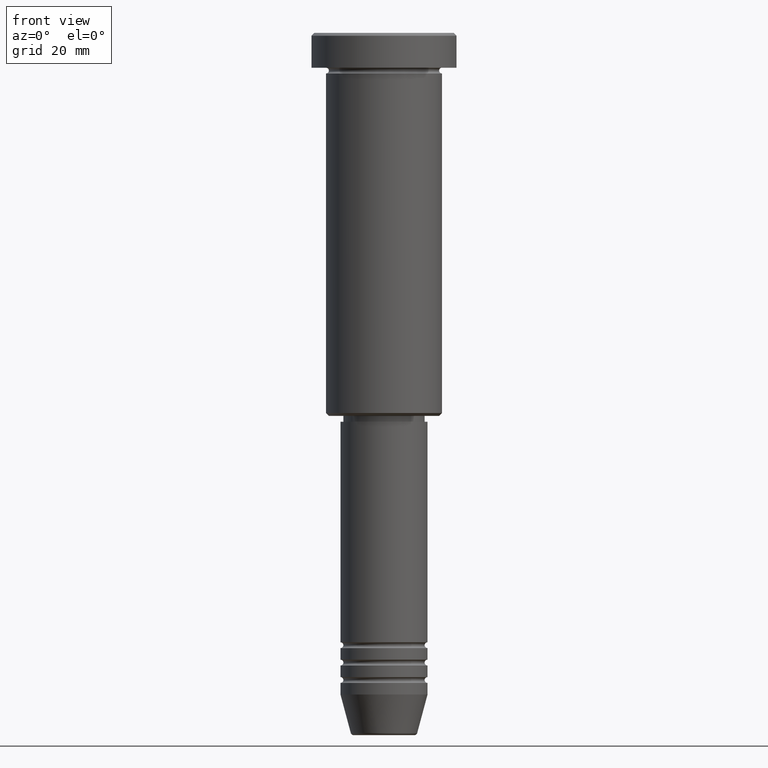
[diagram: clean part render]
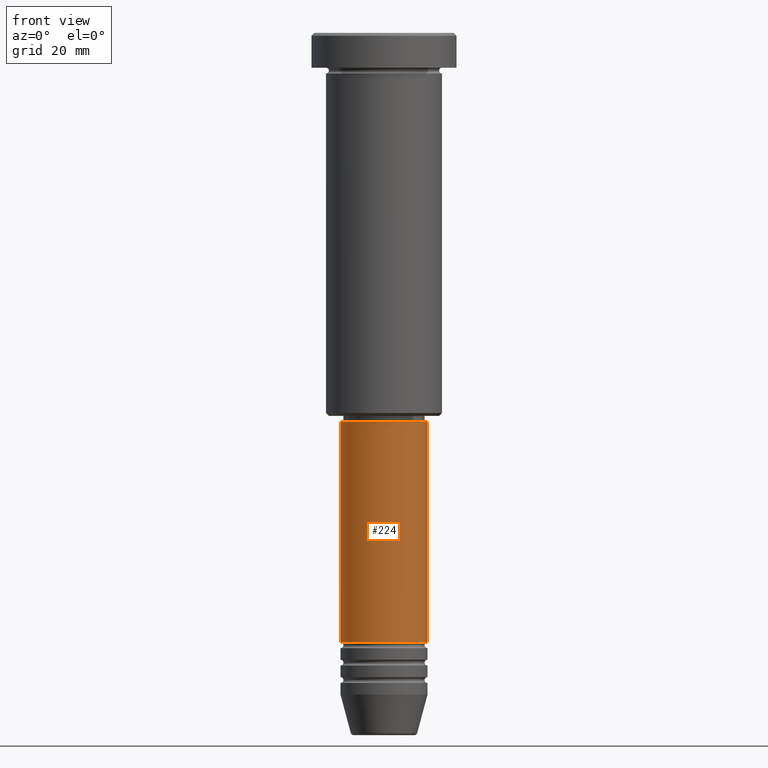
[diagram: same view with one face highlighted and labeled with its STEP entity id]
A machine part, front view. The second image highlights one B-rep face of the part: STEP entity #224.
In plain terms, the highlighted cylindrical surface (partial cylindrical patch) has radius 7.5 mm, axis along (-0, -0, 1).
Its self-contained STEP definition (entity closure, byte-faithful):
#41 = ORIENTED_EDGE ( 'NONE', *, *, #173, .F. ) ;
#80 = EDGE_CURVE ( 'NONE', #596, #1158, #393, .T. ) ;
#152 = CARTESIAN_POINT ( 'NONE',  ( -7.500000000000000000, 9.184850993605147944E-16, -67.00000000000000000 ) ) ;
#163 = DIRECTION ( 'NONE',  ( 1.000000000000000000, 0.000000000000000000, 0.000000000000000000 ) ) ;
#173 = EDGE_CURVE ( 'NONE', #357, #1158, #335, .T. ) ;
#181 = AXIS2_PLACEMENT_3D ( 'NONE', #436, #261, #248 ) ;
#194 = DIRECTION ( 'NONE',  ( 1.000000000000000000, 0.000000000000000000, 0.000000000000000000 ) ) ;
#224 = ADVANCED_FACE ( 'NONE', ( #1026 ), #489, .T. ) ;
#248 = DIRECTION ( 'NONE',  ( 1.000000000000000000, 0.000000000000000000, 0.000000000000000000 ) ) ;
#261 = DIRECTION ( 'NONE',  ( -0.000000000000000000, -0.000000000000000000, 1.000000000000000000 ) ) ;
#294 = DIRECTION ( 'NONE',  ( -0.000000000000000000, -0.000000000000000000, 1.000000000000000000 ) ) ;
#313 = VECTOR ( 'NONE', #1031, 1000.000000000000000 ) ;
#335 = CIRCLE ( 'NONE', #490, 7.500000000000000000 ) ;
#357 = VERTEX_POINT ( 'NONE', #152 ) ;
#393 = LINE ( 'NONE', #661, #313 ) ;
#436 = CARTESIAN_POINT ( 'NONE',  ( 0.000000000000000000, 0.000000000000000000, -104.9999999999999858 ) ) ;
#489 = CYLINDRICAL_SURFACE ( 'NONE', #602, 7.500000000000000000 ) ;
#490 = AXIS2_PLACEMENT_3D ( 'NONE', #1156, #693, #163 ) ;
#540 = EDGE_CURVE ( 'NONE', #859, #357, #683, .T. ) ;
#596 = VERTEX_POINT ( 'NONE', #676 ) ;
#602 = AXIS2_PLACEMENT_3D ( 'NONE', #949, #294, #194 ) ;
#661 = CARTESIAN_POINT ( 'NONE',  ( 7.500000000000000000, 0.000000000000000000, 0.000000000000000000 ) ) ;
#676 = CARTESIAN_POINT ( 'NONE',  ( 7.500000000000000000, 0.000000000000000000, -104.9999999999999858 ) ) ;
#683 = LINE ( 'NONE', #942, #716 ) ;
#693 = DIRECTION ( 'NONE',  ( -0.000000000000000000, -0.000000000000000000, 1.000000000000000000 ) ) ;
#716 = VECTOR ( 'NONE', #1132, 1000.000000000000000 ) ;
#748 = ORIENTED_EDGE ( 'NONE', *, *, #1141, .T. ) ;
#751 = CIRCLE ( 'NONE', #181, 7.500000000000000000 ) ;
#774 = EDGE_LOOP ( 'NONE', ( #1120, #748, #1033, #41 ) ) ;
#859 = VERTEX_POINT ( 'NONE', #930 ) ;
#930 = CARTESIAN_POINT ( 'NONE',  ( -7.500000000000000000, 9.184850993605147944E-16, -104.9999999999999858 ) ) ;
#942 = CARTESIAN_POINT ( 'NONE',  ( -7.500000000000000000, 9.184850993605147944E-16, 0.000000000000000000 ) ) ;
#949 = CARTESIAN_POINT ( 'NONE',  ( 0.000000000000000000, 0.000000000000000000, 0.000000000000000000 ) ) ;
#1026 = FACE_OUTER_BOUND ( 'NONE', #774, .T. ) ;
#1031 = DIRECTION ( 'NONE',  ( -0.000000000000000000, -0.000000000000000000, 1.000000000000000000 ) ) ;
#1033 = ORIENTED_EDGE ( 'NONE', *, *, #80, .T. ) ;
#1071 = CARTESIAN_POINT ( 'NONE',  ( 7.500000000000000000, 0.000000000000000000, -67.00000000000000000 ) ) ;
#1120 = ORIENTED_EDGE ( 'NONE', *, *, #540, .F. ) ;
#1132 = DIRECTION ( 'NONE',  ( -0.000000000000000000, -0.000000000000000000, 1.000000000000000000 ) ) ;
#1141 = EDGE_CURVE ( 'NONE', #859, #596, #751, .T. ) ;
#1156 = CARTESIAN_POINT ( 'NONE',  ( 0.000000000000000000, 0.000000000000000000, -67.00000000000000000 ) ) ;
#1158 = VERTEX_POINT ( 'NONE', #1071 ) ;